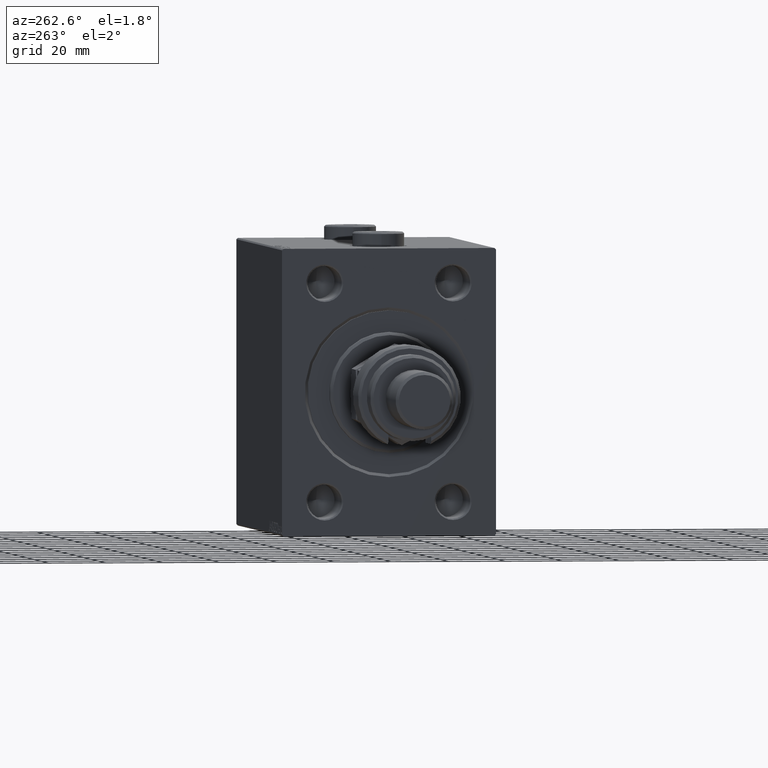
[diagram: clean part render]
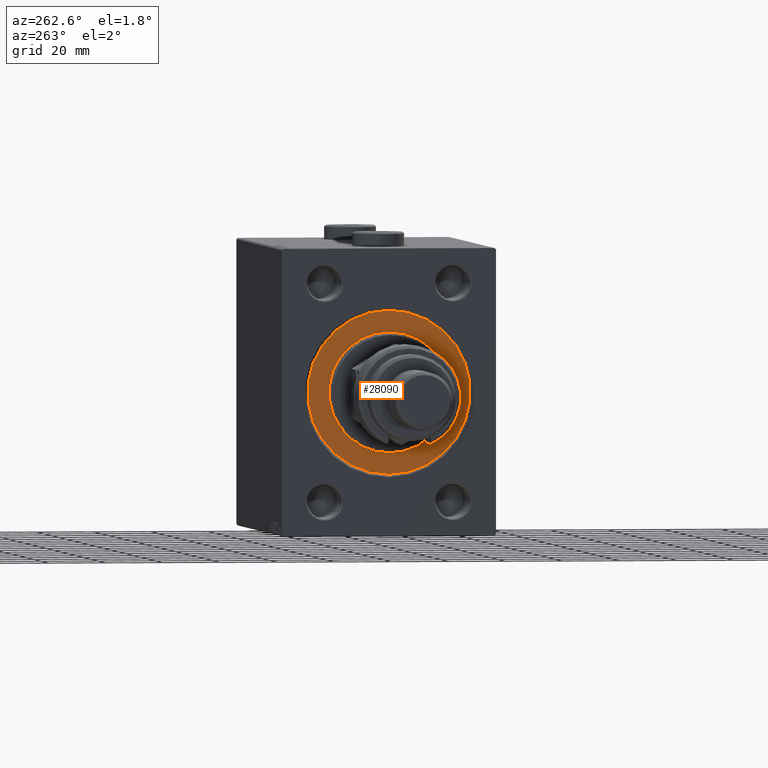
[diagram: same view with one face highlighted and labeled with its STEP entity id]
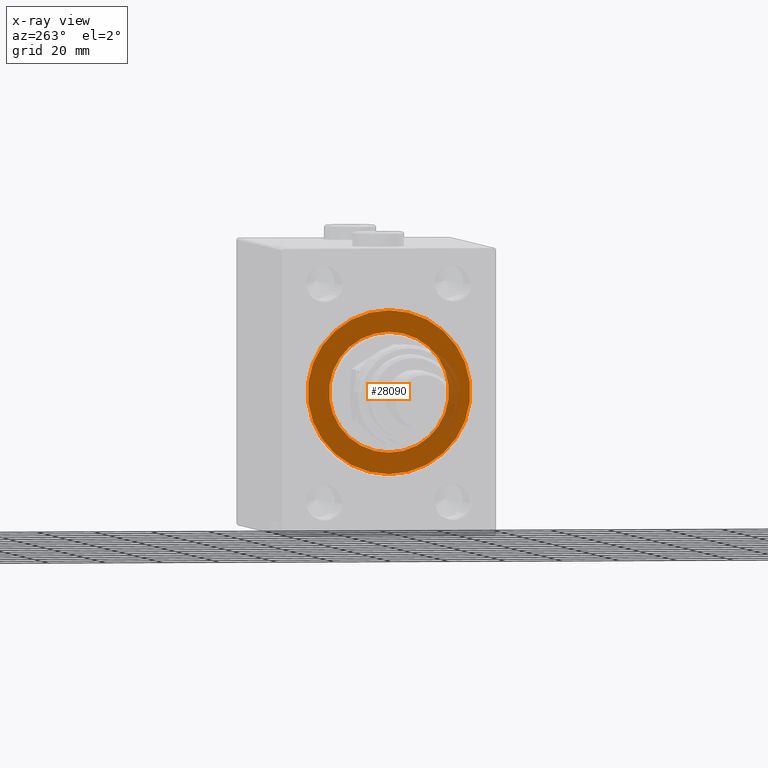
[diagram: x-ray of the same camera — body ghosted, the highlighted face saturated]
A machine part, auxiliary view. The second image highlights one B-rep face of the part: STEP entity #28090.
The next image is the same camera in x-ray: the body ghosted, the highlighted face saturated — about 10% of this face is hidden behind the body in this view.
In plain terms, the highlighted planar face has unit normal (1, -0, -0).
Its self-contained STEP definition (entity closure, byte-faithful):
#509 = VERTEX_POINT ( 'NONE', #19958 ) ;
#4372 = DIRECTION ( 'NONE',  ( 0.000000000000000000, 0.000000000000000000, 1.000000000000000000 ) ) ;
#4446 = VERTEX_POINT ( 'NONE', #6820 ) ;
#5673 = DIRECTION ( 'NONE',  ( 0.000000000000000000, 0.000000000000000000, 1.000000000000000000 ) ) ;
#5978 = DIRECTION ( 'NONE',  ( 1.000000000000000000, -0.000000000000000000, 0.000000000000000000 ) ) ;
#6759 = CIRCLE ( 'NONE', #45929, 28.50000000000000000 ) ;
#6820 = CARTESIAN_POINT ( 'NONE',  ( 0.000000000000000000, 0.000000000000000000, 21.00000000000000000 ) ) ;
#8087 = DIRECTION ( 'NONE',  ( 1.000000000000000000, -0.000000000000000000, 0.000000000000000000 ) ) ;
#8980 = EDGE_LOOP ( 'NONE', ( #36141, #19045 ) ) ;
#10260 = ORIENTED_EDGE ( 'NONE', *, *, #13122, .F. ) ;
#10572 = CARTESIAN_POINT ( 'NONE',  ( 0.000000000000000000, 0.000000000000000000, 0.000000000000000000 ) ) ;
#12816 = DIRECTION ( 'NONE',  ( -1.000000000000000000, 0.000000000000000000, 0.000000000000000000 ) ) ;
#13122 = EDGE_CURVE ( 'NONE', #33348, #509, #28313, .T. ) ;
#14093 = CIRCLE ( 'NONE', #19542, 21.00000000000000000 ) ;
#15413 = DIRECTION ( 'NONE',  ( -1.000000000000000000, 0.000000000000000000, 0.000000000000000000 ) ) ;
#19045 = ORIENTED_EDGE ( 'NONE', *, *, #39733, .F. ) ;
#19542 = AXIS2_PLACEMENT_3D ( 'NONE', #36634, #5978, #35905 ) ;
#19958 = CARTESIAN_POINT ( 'NONE',  ( 0.000000000000000000, 0.000000000000000000, -28.50000000000000000 ) ) ;
#20523 = EDGE_CURVE ( 'NONE', #4446, #35902, #29301, .T. ) ;
#21885 = CARTESIAN_POINT ( 'NONE',  ( 0.000000000000000000, 0.000000000000000000, 0.000000000000000000 ) ) ;
#22429 = EDGE_CURVE ( 'NONE', #509, #33348, #6759, .T. ) ;
#23041 = DIRECTION ( 'NONE',  ( 0.000000000000000000, 0.000000000000000000, -1.000000000000000000 ) ) ;
#25321 = FACE_BOUND ( 'NONE', #8980, .T. ) ;
#25523 = DIRECTION ( 'NONE',  ( 0.000000000000000000, 0.000000000000000000, 1.000000000000000000 ) ) ;
#25969 = AXIS2_PLACEMENT_3D ( 'NONE', #10572, #33613, #25523 ) ;
#26947 = AXIS2_PLACEMENT_3D ( 'NONE', #41692, #8087, #23041 ) ;
#28090 = ADVANCED_FACE ( 'NONE', ( #25321, #40279 ), #45353, .F. ) ;
#28313 = CIRCLE ( 'NONE', #25969, 28.50000000000000000 ) ;
#29301 = CIRCLE ( 'NONE', #26947, 21.00000000000000000 ) ;
#30025 = EDGE_LOOP ( 'NONE', ( #39090, #10260 ) ) ;
#33348 = VERTEX_POINT ( 'NONE', #33826 ) ;
#33613 = DIRECTION ( 'NONE',  ( -1.000000000000000000, 0.000000000000000000, 0.000000000000000000 ) ) ;
#33826 = CARTESIAN_POINT ( 'NONE',  ( 0.000000000000000000, 3.490243377569956456E-15, 28.50000000000000000 ) ) ;
#35663 = AXIS2_PLACEMENT_3D ( 'NONE', #21885, #15413, #4372 ) ;
#35902 = VERTEX_POINT ( 'NONE', #38938 ) ;
#35905 = DIRECTION ( 'NONE',  ( 0.000000000000000000, 0.000000000000000000, -1.000000000000000000 ) ) ;
#36141 = ORIENTED_EDGE ( 'NONE', *, *, #20523, .F. ) ;
#36634 = CARTESIAN_POINT ( 'NONE',  ( 0.000000000000000000, 0.000000000000000000, 0.000000000000000000 ) ) ;
#38938 = CARTESIAN_POINT ( 'NONE',  ( 0.000000000000000000, 2.571758278209441661E-15, -21.00000000000000000 ) ) ;
#39090 = ORIENTED_EDGE ( 'NONE', *, *, #22429, .F. ) ;
#39733 = EDGE_CURVE ( 'NONE', #35902, #4446, #14093, .T. ) ;
#40279 = FACE_OUTER_BOUND ( 'NONE', #30025, .T. ) ;
#41692 = CARTESIAN_POINT ( 'NONE',  ( 0.000000000000000000, 0.000000000000000000, 0.000000000000000000 ) ) ;
#42740 = CARTESIAN_POINT ( 'NONE',  ( 0.000000000000000000, 0.000000000000000000, 0.000000000000000000 ) ) ;
#45353 = PLANE ( 'NONE',  #35663 ) ;
#45929 = AXIS2_PLACEMENT_3D ( 'NONE', #42740, #12816, #5673 ) ;